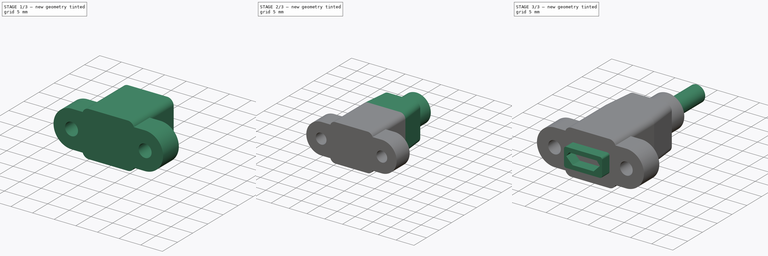
[diagram: build sequence overview — one tinted view per stage of 3, left to right]
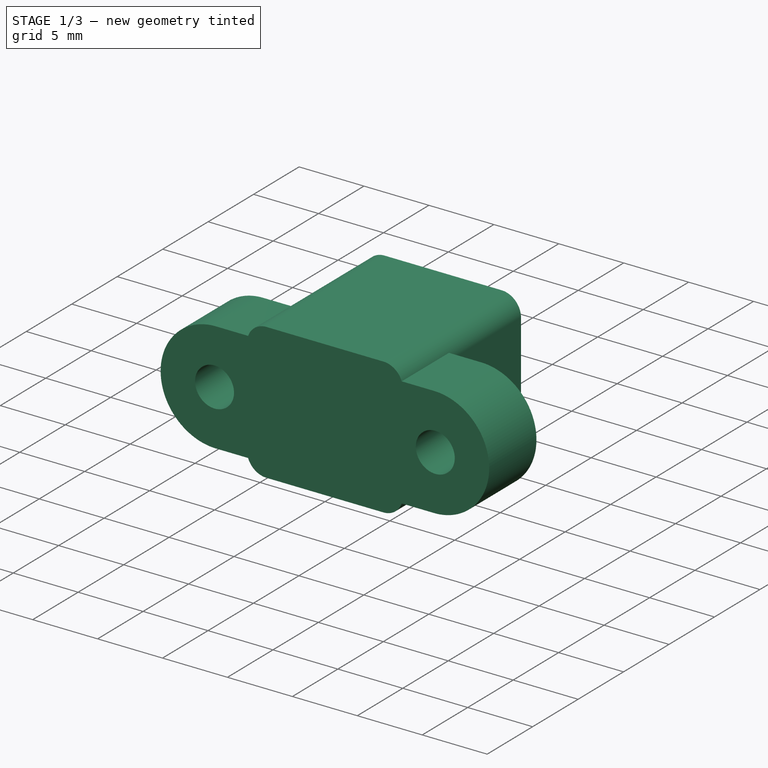
[diagram: stage 1 of 3 — iso view after this stage's code; geometry added in this stage tinted green]
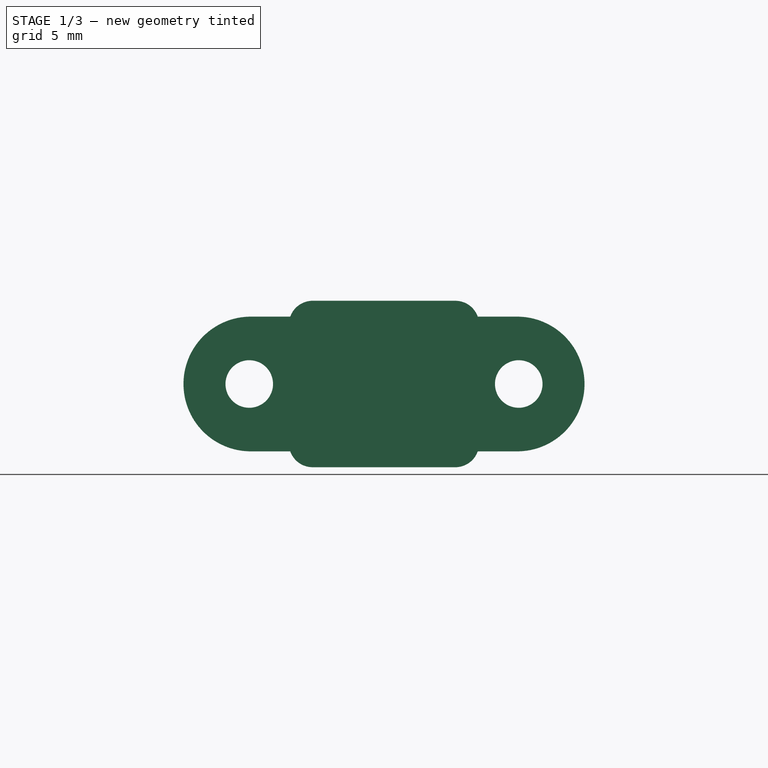
[diagram: stage 1 of 3 — front view after this stage's code; geometry added in this stage tinted green]
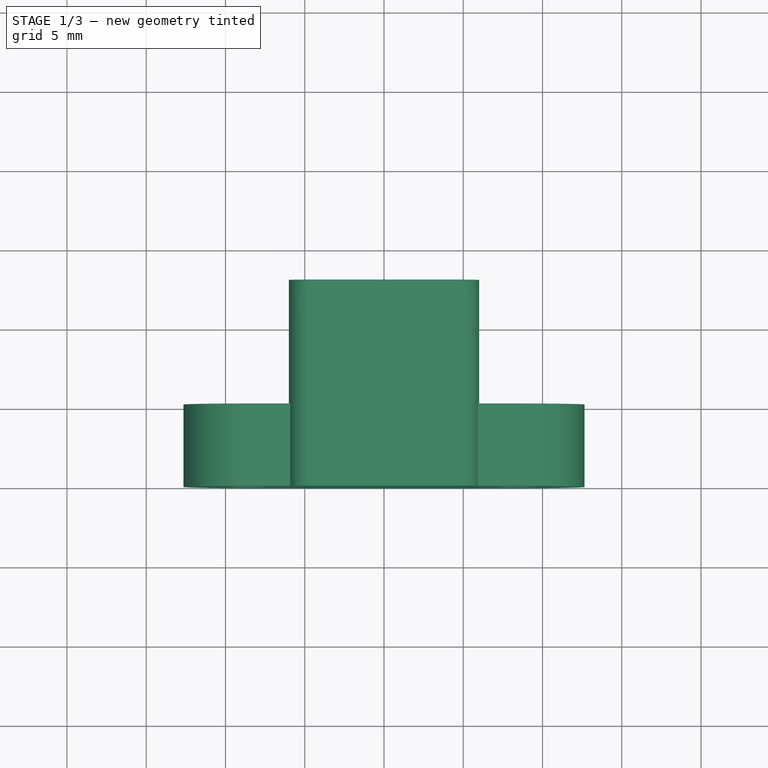
[diagram: stage 1 of 3 — top view after this stage's code; geometry added in this stage tinted green]
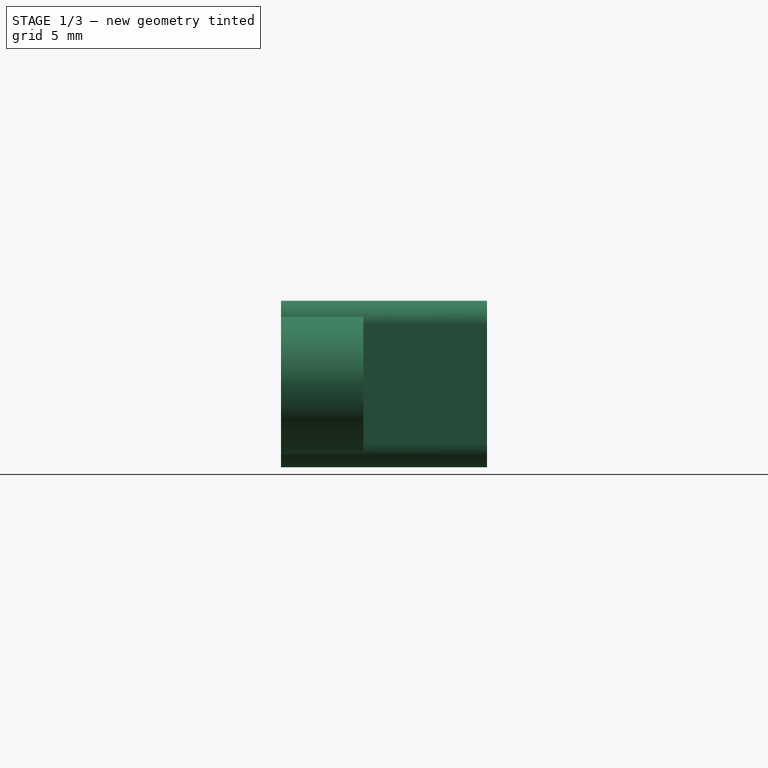
[diagram: stage 1 of 3 — right view after this stage's code; geometry added in this stage tinted green]
FCSTD DOCUMENT  (FreeCAD 0.19R24276 (Git))
Label: Std_USB_B_F
License: All rights reserved
LicenseURL: http://en.wikipedia.org/wiki/All_rights_reserved
objects: Sketcher::SketchObject×9, PartDesign::Pad×5, PartDesign::Plane×4, PartDesign::Pocket×2, PartDesign::AdditiveLoft×1, PartDesign::Body×1, App::Part×1
note: 30 computed .brp shape members not serialized (recipe doc carries the construction recipe); baked Part::Feature solids carry a one-line shape summary decoded from their .brp

FEATURE [Sketcher::SketchObject] Sketch
  FullyConstrained = true
  MapMode = 5
  Placement = pos=(0,0,0) rot=(1,0,0;1.5708rad)
  Support = -> [XZ_Plane001]
  sketch-geometry (26):
    g0: LineSegment StartX=-4.5 StartY=5.25 StartZ=0 EndX=4.5 EndY=5.25 EndZ=0
    g1: LineSegment StartX=5.91421 StartY=4.25 StartZ=0 EndX=8.4 EndY=4.25 EndZ=0
    g2: ArcOfCircle CenterX=8.4 CenterY=0 CenterZ=0 NormalX=0 NormalY=0 NormalZ=1 AngleXU=0 Radius=4.25 StartAngle=4.71239 EndAngle=7.85398
    g3: ArcOfCircle CenterX=4.5 CenterY=3.75 CenterZ=0 NormalX=0 NormalY=0 NormalZ=1 AngleXU=0 Radius=1.5 StartAngle=0.339837 EndAngle=1.5708
    g4: LineSegment StartX=0 StartY=0 StartZ=0 EndX=0 EndY=5.25 EndZ=0
    g5: LineSegment StartX=0 StartY=0 StartZ=0 EndX=0 EndY=-5.25 EndZ=0
    g6: LineSegment StartX=8.4 StartY=-4.25 StartZ=0 EndX=5.91421 EndY=-4.25 EndZ=0
    g7: LineSegment StartX=-4.5 StartY=-5.25 StartZ=0 EndX=4.5 EndY=-5.25 EndZ=0
    g8: LineSegment StartX=8.4 StartY=4.25 StartZ=0 EndX=8.4 EndY=-4.25 EndZ=0
    g9: ArcOfCircle CenterX=4.5 CenterY=-3.75 CenterZ=0 NormalX=0 NormalY=0 NormalZ=1 AngleXU=0 Radius=1.5 StartAngle=4.71239 EndAngle=5.94335
    g10: LineSegment StartX=-5.91421 StartY=4.25 StartZ=0 EndX=-8.4 EndY=4.25 EndZ=0
    g11: LineSegment StartX=-5.91421 StartY=-4.25 StartZ=0 EndX=-8.4 EndY=-4.25 EndZ=0
    g12: ArcOfCircle CenterX=-8.4 CenterY=0 CenterZ=0 NormalX=0 NormalY=0 NormalZ=1 AngleXU=0 Radius=4.25 StartAngle=1.5708 EndAngle=4.71239
    g13: LineSegment StartX=-8.4 StartY=4.25 StartZ=0 EndX=-8.4 EndY=-4.25 EndZ=0
    g14: ArcOfCircle CenterX=-4.5 CenterY=3.75 CenterZ=0 NormalX=0 NormalY=0 NormalZ=1 AngleXU=0 Radius=1.5 StartAngle=1.5708 EndAngle=2.80176
    g15: ArcOfCircle CenterX=-4.5 CenterY=-3.75 CenterZ=0 NormalX=0 NormalY=0 NormalZ=1 AngleXU=0 Radius=1.5 StartAngle=3.48143 EndAngle=4.71239
    g16: GeomPoint X=12.65 Y=0 Z=0
    g17: GeomPoint X=-12.65 Y=0 Z=0
    g18: ArcOfCircle CenterX=-4.5 CenterY=3.75 CenterZ=0 NormalX=0 NormalY=0 NormalZ=1 AngleXU=0 Radius=1.5 StartAngle=2.80176 EndAngle=3.14159
    g19: ArcOfCircle CenterX=-4.5 CenterY=-3.75 CenterZ=0 NormalX=0 NormalY=0 NormalZ=1 AngleXU=0 Radius=1.5 StartAngle=3.14159 EndAngle=3.48143
    g20: LineSegment StartX=-6 StartY=3.75 StartZ=0 EndX=-4.5 EndY=3.75 EndZ=0
    g21: LineSegment StartX=-4.5 StartY=-3.75 StartZ=0 EndX=-6 EndY=-3.75 EndZ=0
    g22: ArcOfCircle CenterX=4.5 CenterY=3.75 CenterZ=0 NormalX=0 NormalY=0 NormalZ=1 AngleXU=0 Radius=1.5 StartAngle=0 EndAngle=0.339837
    g23: ArcOfCircle CenterX=4.5 CenterY=-3.75 CenterZ=0 NormalX=0 NormalY=0 NormalZ=1 AngleXU=0 Radius=1.5 StartAngle=5.94335 EndAngle=6.28319
    g24: LineSegment StartX=4.5 StartY=3.75 StartZ=0 EndX=6 EndY=3.75 EndZ=0
    g25: LineSegment StartX=4.5 StartY=-3.75 StartZ=0 EndX=6 EndY=-3.75 EndZ=0
  constraints (70):
    c: Horizontal(g0)
    c: Horizontal(g1)
    c: PointOnObject(g2,g-1)
    c: Coincident(g2,g1)
    c: Tangent(g0,g3) = 1.5708
    c: Coincident(g4,g-1)
    c: PointOnObject(g4,g-2)
    c: Coincident(g5,g-1)
    c: Vertical(g5)
    c: Coincident(g6,g2)
    c: Horizontal(g7)
    c: Coincident(g8,g1)
    c: Coincident(g8,g2)
    c: Vertical(g8)
    c: PointOnObject(g2,g8)
    c: Equal(g4,g5)
    c: Equal(g6,g1)
    c: Horizontal(g6)
    c: Tangent(g7,g9) = -1.5708
    c: Horizontal(g11)
    c: Horizontal(g10)
    c: PointOnObject(g12,g-1)
    c: Coincident(g12,g10)
    c: Coincident(g12,g11)
    c: Coincident(g13,g10)
    c: Coincident(g13,g11)
    c: Vertical(g13)
    c: PointOnObject(g12,g13)
    c: Tangent(g0,g14) = 1.5708
    c: Tangent(g7,g15) = -1.5708
    c: Symmetric(g0,g0,g4)
    c: Symmetric(g7,g7,g5)
    c: DistanceY(g7,g0) = 10.5
    c: Radius(g3) = 1.5
    c: DistanceY(g2,g1) = 8.5
    c: PointOnObject(g16,g-1)
    c: PointOnObject(g17,g-1)
    c: PointOnObject(g17,g12)
    c: PointOnObject(g16,g2)
    c: Equal(g10,g1)
    c: DistanceX(g17,g16) = 25.3
    c: Equal(g9,g15)
    c: Equal(g14,g3)
    c: Equal(g9,g3)
    c: Coincident(g14,g10)
    c: Coincident(g15,g11)
    c: Coincident(g9,g6)
    c: Coincident(g3,g1)
    c: Equal(g12,g2)
    c: Coincident(g18,g14)
    c: Coincident(g18,g10)
    c: Coincident(g19,g15)
    c: Coincident(g19,g11)
    c: Coincident(g20,g18)
    c: Coincident(g20,g14)
    c: Horizontal(g20)
    c: Coincident(g21,g15)
    c: Coincident(g21,g19)
    c: Horizontal(g21)
    c: Coincident(g22,g3)
    c: Coincident(g22,g1)
    c: Coincident(g23,g9)
    c: Coincident(g23,g6)
    c: Coincident(g24,g3)
    c: Coincident(g24,g22)
    c: Horizontal(g24)
    c: Coincident(g25,g9)
    c: Coincident(g25,g23)
    c: Horizontal(g25)
    c: DistanceX(g18,g22) = 12
FEATURE [PartDesign::Pad] Pad
  Direction = (1,1,1)
  Length = 5.2
  Length2 = 100
  Placement = pos=(0,0,0) rot=(1,0,0;1.5708rad)
  Profile = -> Sketch
  Reversed = true
  Type = 0
FEATURE [PartDesign::Plane] DatumPlane  label="DatumZ1"
  AttachmentOffset = pos=(0,0,-5.2) rot=(0,0,1;0rad)
  Length = 60
  MapMode = 5
  Placement = pos=(0,5.2,1.2e-15) rot=(1,0,0;1.5708rad)
  ResizeMode = 0
  Support = -> [XZ_Plane001]
  Width = 60
FEATURE [PartDesign::Plane] DatumPlane001  label="DatumZ2"
  AttachmentOffset = pos=(0,0,-13) rot=(0,0,1;0rad)
  Length = 60
  MapMode = 5
  Placement = pos=(0,13,2.9e-15) rot=(1,0,0;1.5708rad)
  ResizeMode = 0
  Support = -> [XZ_Plane001]
  Width = 60
FEATURE [PartDesign::Plane] DatumPlane002  label="DatumZ3"
  AttachmentOffset = pos=(0,0,-20) rot=(0,0,1;0rad)
  Length = 60
  MapMode = 5
  Placement = pos=(0,20,4.4e-15) rot=(1,0,0;1.5708rad)
  ResizeMode = 0
  Support = -> [XZ_Plane001]
  Width = 60
FEATURE [PartDesign::Plane] DatumPlane003  label="DatumZ4"
  AttachmentOffset = pos=(0,0,-26) rot=(0,0,1;0rad)
  Length = 60
  MapMode = 5
  Placement = pos=(0,26,5.8e-15) rot=(1,0,0;1.5708rad)
  ResizeMode = 0
  Support = -> [XZ_Plane001]
  Width = 60
FEATURE [Sketcher::SketchObject] Sketch001
  FullyConstrained = true
  MapMode = 5
  Placement = pos=(0,5.2,1.2e-15) rot=(1,0,0;1.5708rad)
  Support = -> [DatumPlane]
  sketch-geometry (10):
    g0: LineSegment StartX=-4.5 StartY=5.25 StartZ=0 EndX=4.5 EndY=5.25 EndZ=0
    g1: LineSegment StartX=6 StartY=3.75 StartZ=0 EndX=6 EndY=-3.75 EndZ=0
    g2: LineSegment StartX=4.5 StartY=-5.25 StartZ=0 EndX=-4.5 EndY=-5.25 EndZ=0
    g3: LineSegment StartX=-6 StartY=-3.75 StartZ=0 EndX=-6 EndY=3.75 EndZ=0
    g4: LineSegment StartX=0 StartY=0 StartZ=0 EndX=0 EndY=5.25 EndZ=0
    g5: LineSegment StartX=0 StartY=0 StartZ=0 EndX=6 EndY=0 EndZ=0
    g6: ArcOfCircle CenterX=-4.5 CenterY=3.75 CenterZ=0 NormalX=0 NormalY=0 NormalZ=1 AngleXU=0 Radius=1.5 StartAngle=1.5708 EndAngle=3.14159
    g7: ArcOfCircle CenterX=4.5 CenterY=3.75 CenterZ=0 NormalX=0 NormalY=0 NormalZ=1 AngleXU=0 Radius=1.5 StartAngle=0 EndAngle=1.5708
    g8: ArcOfCircle CenterX=4.5 CenterY=-3.75 CenterZ=0 NormalX=0 NormalY=0 NormalZ=1 AngleXU=0 Radius=1.5 StartAngle=4.71239 EndAngle=6.28319
    g9: ArcOfCircle CenterX=-4.5 CenterY=-3.75 CenterZ=0 NormalX=0 NormalY=0 NormalZ=1 AngleXU=0 Radius=1.5 StartAngle=3.14159 EndAngle=4.71239
  constraints (24):
    c: Horizontal(g0)
    c: Horizontal(g2)
    c: Vertical(g1)
    c: Vertical(g3)
    c: Coincident(g4,g-1)
    c: PointOnObject(g4,g-2)
    c: Coincident(g5,g-1)
    c: Horizontal(g5)
    c: Tangent(g3,g6) = 1.5708
    c: Tangent(g0,g6) = 1.5708
    c: Tangent(g0,g7) = 1.5708
    c: Tangent(g1,g7) = 1.5708
    c: Tangent(g1,g8) = 1.5708
    c: Tangent(g2,g8) = 1.5708
    c: Tangent(g2,g9) = 1.5708
    c: Tangent(g3,g9) = 1.5708
    c: Equal(g6,g7)
    c: Equal(g7,g8)
    c: Equal(g8,g9)
    c: Radius(g7) = 1.5
    c: Symmetric(g0,g0,g4)
    c: Symmetric(g1,g1,g5)
    c: DistanceY(g2,g0) = 10.5
    c: DistanceX(g3,g1) = 12
FEATURE [PartDesign::Pad] Pad001
  BaseFeature = -> Pad
  Direction = (1,1,1)
  Length = 7.8
  Length2 = 100
  Placement = pos=(0,0,0) rot=(1,0,0;1.5708rad)
  Profile = -> Sketch001
  Reversed = true
  Type = 0
FEATURE [Sketcher::SketchObject] Sketch002
  FullyConstrained = true
  MapMode = 5
  Placement = pos=(0,0,0) rot=(1,0,0;1.5708rad)
  Support = -> [XZ_Plane001]
  sketch-geometry (2):
    g0: Circle CenterX=8.5 CenterY=0 CenterZ=0 NormalX=0 NormalY=0 NormalZ=1 AngleXU=0 Radius=1.5
    g1: Circle CenterX=-8.5 CenterY=0 CenterZ=0 NormalX=0 NormalY=0 NormalZ=1 AngleXU=0 Radius=1.5
  constraints (5):
    c: PointOnObject(g1,g-1)
    c: Symmetric(g1,g0,g-1)
    c: Diameter(g0) = 3
    c: Equal(g0,g1)
    c: DistanceX(g1,g0) = 17
FEATURE [PartDesign::Pocket] Pocket
  BaseFeature = -> Pad001
  Length = 5
  Length2 = 100
  Placement = pos=(0,0,0) rot=(1,0,0;1.5708rad)
  Profile = -> Sketch002
  Type = 1
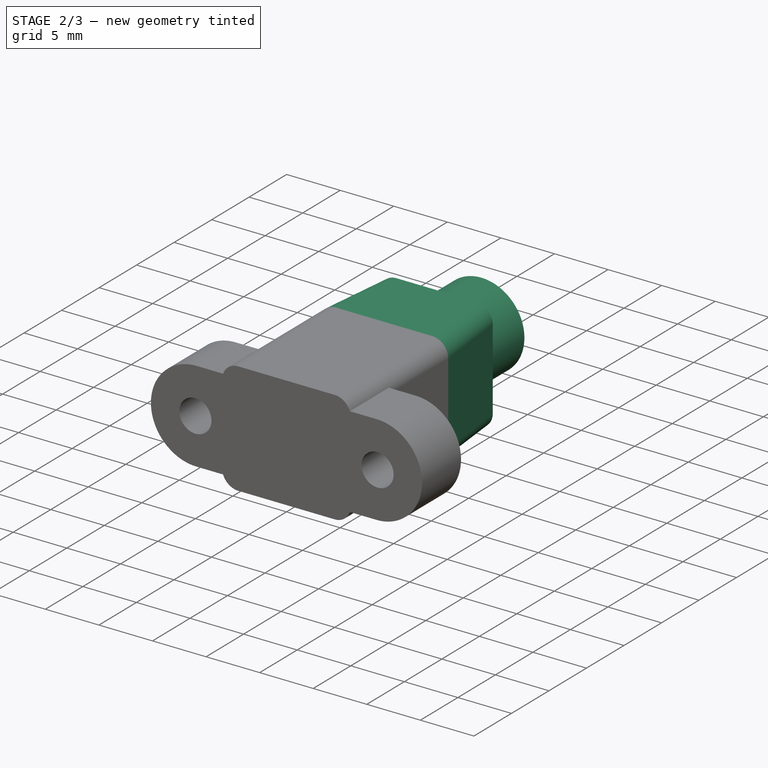
[diagram: stage 2 of 3 — iso view after this stage's code; geometry added in this stage tinted green]
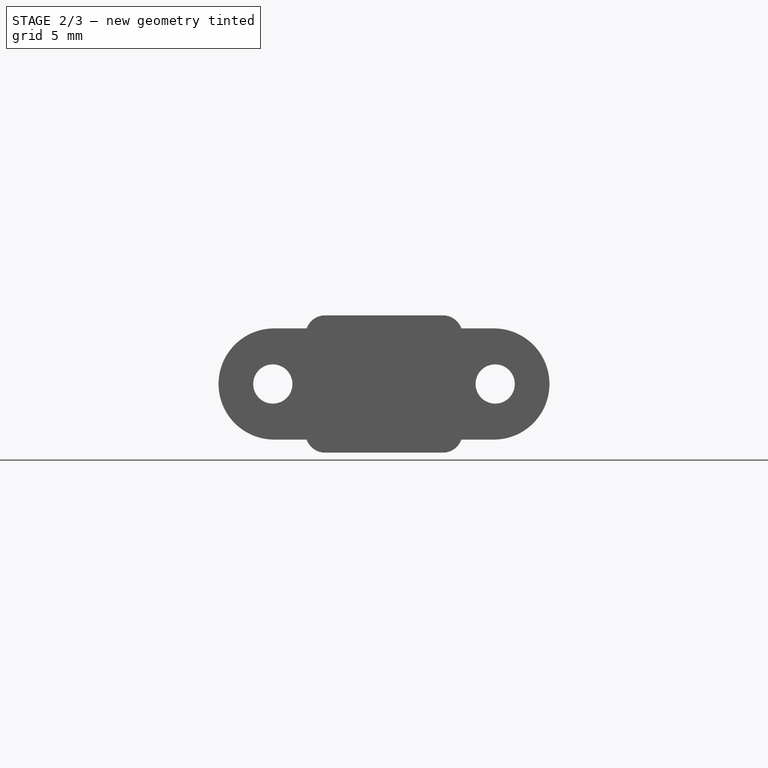
[diagram: stage 2 of 3 — front view after this stage's code; geometry added in this stage tinted green]
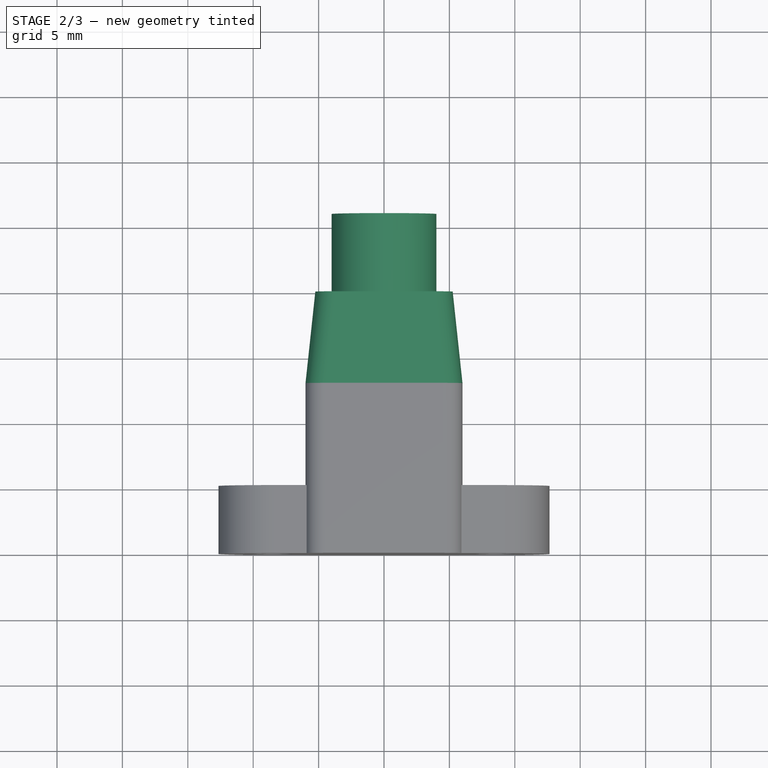
[diagram: stage 2 of 3 — top view after this stage's code; geometry added in this stage tinted green]
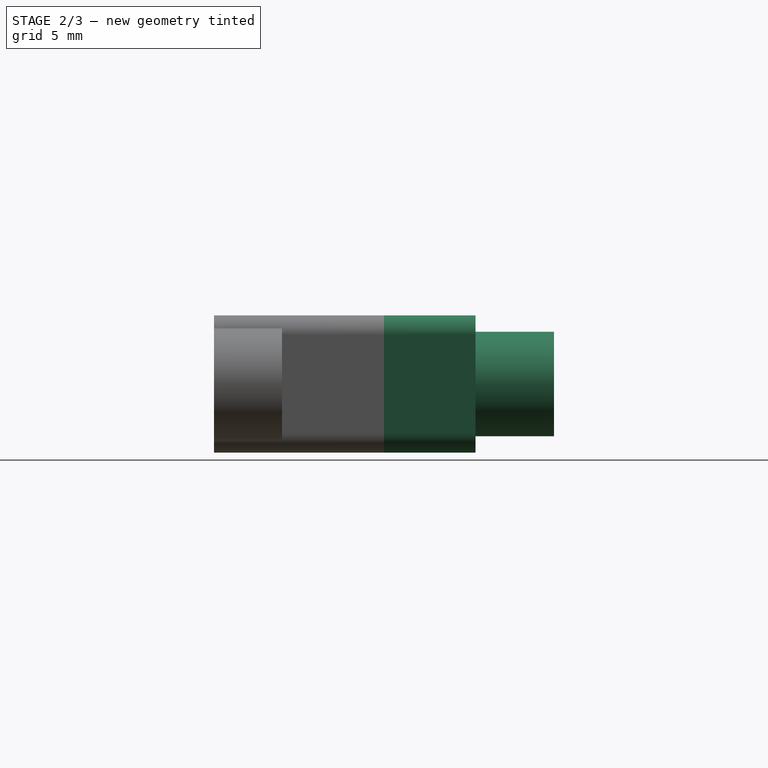
[diagram: stage 2 of 3 — right view after this stage's code; geometry added in this stage tinted green]
FEATURE [Sketcher::SketchObject] Sketch003
  FullyConstrained = true
  MapMode = 5
  Placement = pos=(0,13,2.9e-15) rot=(1,0,0;1.5708rad)
  Support = -> [DatumPlane001]
  sketch-geometry (10):
    g0: LineSegment StartX=-4.5 StartY=5.25 StartZ=0 EndX=4.5 EndY=5.25 EndZ=0
    g1: LineSegment StartX=6 StartY=3.75 StartZ=0 EndX=6 EndY=-3.75 EndZ=0
    g2: LineSegment StartX=4.5 StartY=-5.25 StartZ=0 EndX=-4.5 EndY=-5.25 EndZ=0
    g3: LineSegment StartX=-6 StartY=-3.75 StartZ=0 EndX=-6 EndY=3.75 EndZ=0
    g4: ArcOfCircle CenterX=-4.5 CenterY=3.75 CenterZ=0 NormalX=0 NormalY=0 NormalZ=1 AngleXU=0 Radius=1.5 StartAngle=1.5708 EndAngle=3.14159
    g5: ArcOfCircle CenterX=4.5 CenterY=3.75 CenterZ=0 NormalX=0 NormalY=0 NormalZ=1 AngleXU=0 Radius=1.5 StartAngle=0 EndAngle=1.5708
    g6: ArcOfCircle CenterX=4.5 CenterY=-3.75 CenterZ=0 NormalX=0 NormalY=0 NormalZ=1 AngleXU=0 Radius=1.5 StartAngle=4.71239 EndAngle=6.28319
    g7: ArcOfCircle CenterX=-4.5 CenterY=-3.75 CenterZ=0 NormalX=0 NormalY=0 NormalZ=1 AngleXU=0 Radius=1.5 StartAngle=3.14159 EndAngle=4.71239
    g8: LineSegment StartX=0 StartY=0 StartZ=0 EndX=0 EndY=5.25 EndZ=0
    g9: LineSegment StartX=0 StartY=0 StartZ=0 EndX=6 EndY=0 EndZ=0
  constraints (24):
    c: Horizontal(g0)
    c: Horizontal(g2)
    c: Vertical(g1)
    c: Vertical(g3)
    c: Tangent(g3,g4) = 1.5708
    c: Tangent(g0,g4) = 1.5708
    c: Tangent(g0,g5) = 1.5708
    c: Tangent(g1,g5) = 1.5708
    c: Tangent(g2,g6) = 1.5708
    c: Tangent(g1,g6) = 1.5708
    c: Tangent(g2,g7) = 1.5708
    c: Tangent(g3,g7) = 1.5708
    c: Equal(g4,g5)
    c: Equal(g5,g6)
    c: Equal(g6,g7)
    c: Coincident(g8,g-1)
    c: PointOnObject(g8,g-2)
    c: Coincident(g9,g-1)
    c: PointOnObject(g9,g-1)
    c: Symmetric(g0,g0,g8)
    c: Symmetric(g1,g1,g9)
    c: Radius(g5) = 1.5
    c: DistanceX(g3,g1) = 12
    c: DistanceY(g2,g0) = 10.5
FEATURE [Sketcher::SketchObject] Sketch004
  FullyConstrained = true
  MapMode = 5
  Placement = pos=(0,20,4.4e-15) rot=(1,0,0;1.5708rad)
  Support = -> [DatumPlane002]
  sketch-geometry (10):
    g0: LineSegment StartX=-3.75 StartY=5.25 StartZ=0 EndX=3.75 EndY=5.25 EndZ=0
    g1: LineSegment StartX=5.25 StartY=3.75 StartZ=0 EndX=5.25 EndY=-3.75 EndZ=0
    g2: LineSegment StartX=3.75 StartY=-5.25 StartZ=0 EndX=-3.75 EndY=-5.25 EndZ=0
    g3: LineSegment StartX=-5.25 StartY=-3.75 StartZ=0 EndX=-5.25 EndY=3.75 EndZ=0
    g4: ArcOfCircle CenterX=-3.75 CenterY=3.75 CenterZ=0 NormalX=0 NormalY=0 NormalZ=1 AngleXU=0 Radius=1.5 StartAngle=1.5708 EndAngle=3.14159
    g5: ArcOfCircle CenterX=3.75 CenterY=3.75 CenterZ=0 NormalX=0 NormalY=0 NormalZ=1 AngleXU=0 Radius=1.5 StartAngle=0 EndAngle=1.5708
    g6: ArcOfCircle CenterX=3.75 CenterY=-3.75 CenterZ=0 NormalX=0 NormalY=0 NormalZ=1 AngleXU=0 Radius=1.5 StartAngle=4.71239 EndAngle=6.28319
    g7: ArcOfCircle CenterX=-3.75 CenterY=-3.75 CenterZ=0 NormalX=0 NormalY=0 NormalZ=1 AngleXU=0 Radius=1.5 StartAngle=3.14159 EndAngle=4.71239
    g8: LineSegment StartX=0 StartY=0 StartZ=0 EndX=0 EndY=5.25 EndZ=0
    g9: LineSegment StartX=0 StartY=0 StartZ=0 EndX=5.25 EndY=0 EndZ=0
  constraints (24):
    c: Horizontal(g0)
    c: Horizontal(g2)
    c: Vertical(g1)
    c: Vertical(g3)
    c: Tangent(g3,g4) = 1.5708
    c: Tangent(g0,g4) = 1.5708
    c: Tangent(g0,g5) = 1.5708
    c: Tangent(g1,g5) = 1.5708
    c: Tangent(g1,g6) = 1.5708
    c: Tangent(g2,g6) = 1.5708
    c: Tangent(g2,g7) = 1.5708
    c: Tangent(g3,g7) = 1.5708
    c: Equal(g5,g4)
    c: Equal(g7,g6)
    c: Equal(g6,g5)
    c: Radius(g5) = 1.5
    c: Coincident(g8,g-1)
    c: PointOnObject(g8,g-2)
    c: Coincident(g9,g-1)
    c: Horizontal(g9)
    c: Symmetric(g0,g0,g8)
    c: Symmetric(g1,g1,g9)
    c: DistanceY(g2,g0) = 10.5
    c: DistanceX(g3,g1) = 10.5
FEATURE [PartDesign::AdditiveLoft] AdditiveLoft
  BaseFeature = -> Pocket
  Closed = false
  Placement = pos=(0,0,0) rot=(1,0,0;1.5708rad)
  Profile = -> Sketch003
  Ruled = false
  Sections = -> [Sketch004]
FEATURE [Sketcher::SketchObject] Sketch005
  FullyConstrained = true
  MapMode = 5
  Placement = pos=(0,20,4.4e-15) rot=(1,0,0;1.5708rad)
  Support = -> [DatumPlane002]
  sketch-geometry (1):
    g0: Circle CenterX=0 CenterY=0 CenterZ=0 NormalX=0 NormalY=0 NormalZ=1 AngleXU=0 Radius=4
  constraints (2):
    c: Coincident(g0,g-1)
    c: Diameter(g0) = 8
FEATURE [PartDesign::Pad] Pad002
  BaseFeature = -> AdditiveLoft
  Direction = (1,1,1)
  Length = 6
  Length2 = 100
  Placement = pos=(0,0,0) rot=(1,0,0;1.5708rad)
  Profile = -> Sketch005
  Reversed = true
  Type = 0
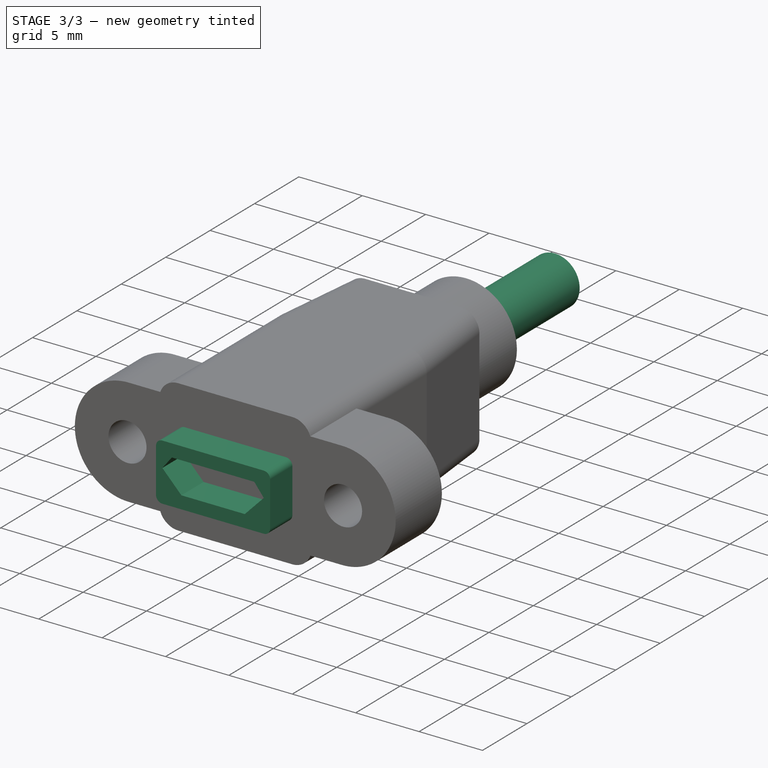
[diagram: stage 3 of 3 — iso view after this stage's code; geometry added in this stage tinted green]
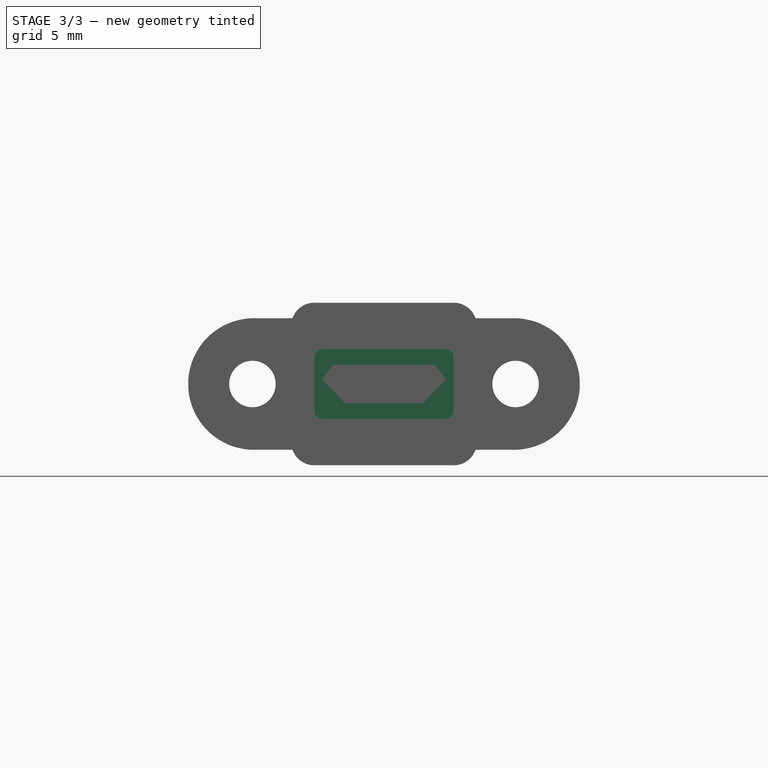
[diagram: stage 3 of 3 — front view after this stage's code; geometry added in this stage tinted green]
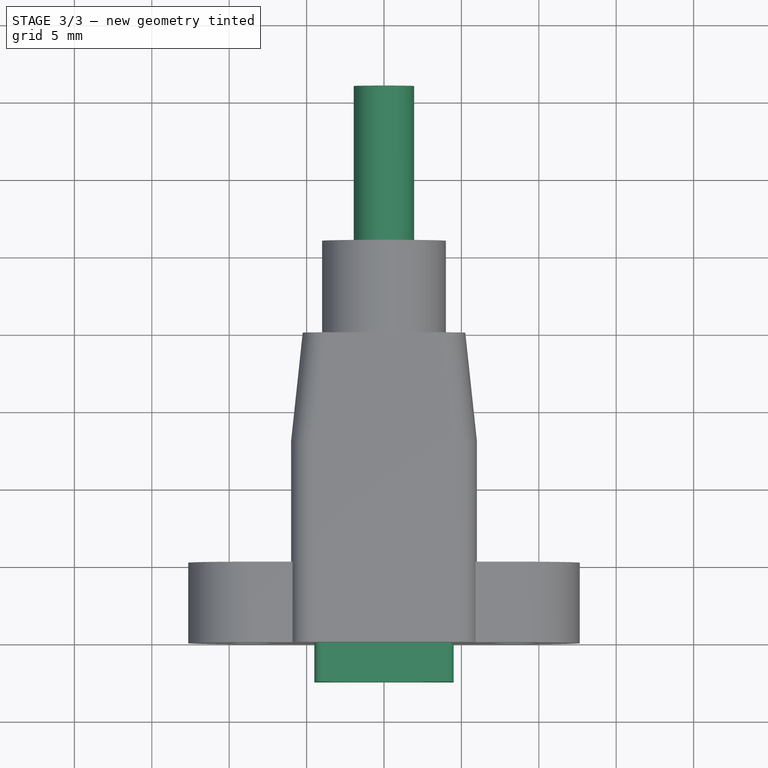
[diagram: stage 3 of 3 — top view after this stage's code; geometry added in this stage tinted green]
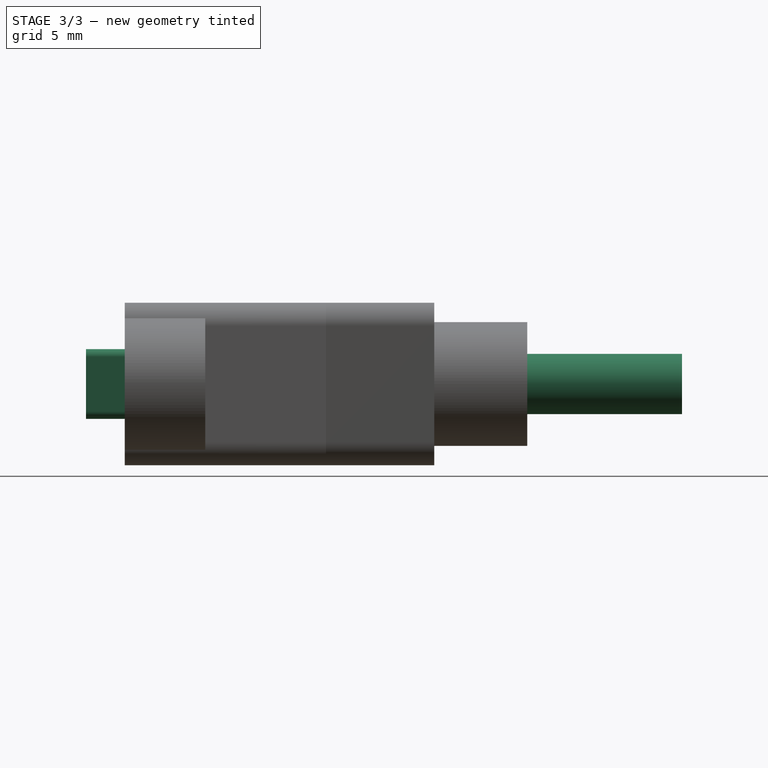
[diagram: stage 3 of 3 — right view after this stage's code; geometry added in this stage tinted green]
FEATURE [Sketcher::SketchObject] Sketch006
  FullyConstrained = true
  MapMode = 5
  Placement = pos=(0,26,5.8e-15) rot=(1,0,0;1.5708rad)
  Support = -> [DatumPlane003]
  sketch-geometry (1):
    g0: Circle CenterX=0 CenterY=0 CenterZ=0 NormalX=0 NormalY=0 NormalZ=1 AngleXU=0 Radius=1.95
  constraints (2):
    c: Coincident(g0,g-1)
    c: Diameter(g0) = 3.9
FEATURE [PartDesign::Pad] Pad003
  BaseFeature = -> Pad002
  Direction = (1,1,1)
  Length = 10
  Length2 = 100
  Placement = pos=(0,0,0) rot=(1,0,0;1.5708rad)
  Profile = -> Sketch006
  Reversed = true
  Type = 0
FEATURE [Sketcher::SketchObject] Sketch007
  FullyConstrained = true
  MapMode = 5
  Placement = pos=(0,0,0) rot=(1,0,0;1.5708rad)
  Support = -> [XZ_Plane001]
  sketch-geometry (10):
    g0: LineSegment StartX=-4 StartY=2.25 StartZ=0 EndX=4 EndY=2.25 EndZ=0
    g1: LineSegment StartX=4.5 StartY=1.75 StartZ=0 EndX=4.5 EndY=-1.75 EndZ=0
    g2: LineSegment StartX=4 StartY=-2.25 StartZ=0 EndX=-4 EndY=-2.25 EndZ=0
    g3: LineSegment StartX=-4.5 StartY=-1.75 StartZ=0 EndX=-4.5 EndY=1.75 EndZ=0
    g4: LineSegment StartX=0 StartY=0 StartZ=0 EndX=0 EndY=2.25 EndZ=0
    g5: LineSegment StartX=0 StartY=0 StartZ=0 EndX=4.5 EndY=0 EndZ=0
    g6: ArcOfCircle CenterX=-4 CenterY=1.75 CenterZ=0 NormalX=0 NormalY=0 NormalZ=1 AngleXU=0 Radius=0.5 StartAngle=1.5708 EndAngle=3.14159
    g7: ArcOfCircle CenterX=4 CenterY=1.75 CenterZ=0 NormalX=0 NormalY=0 NormalZ=1 AngleXU=0 Radius=0.5 StartAngle=0 EndAngle=1.5708
    g8: ArcOfCircle CenterX=4 CenterY=-1.75 CenterZ=0 NormalX=0 NormalY=0 NormalZ=1 AngleXU=0 Radius=0.5 StartAngle=4.71239 EndAngle=6.28319
    g9: ArcOfCircle CenterX=-4 CenterY=-1.75 CenterZ=0 NormalX=0 NormalY=0 NormalZ=1 AngleXU=0 Radius=0.5 StartAngle=3.14159 EndAngle=4.71239
  constraints (24):
    c: Horizontal(g0)
    c: Horizontal(g2)
    c: Vertical(g1)
    c: Vertical(g3)
    c: Coincident(g4,g-1)
    c: PointOnObject(g4,g-2)
    c: Coincident(g5,g-1)
    c: PointOnObject(g5,g-1)
    c: Tangent(g3,g6) = 1.5708
    c: Tangent(g0,g6) = 1.5708
    c: Tangent(g0,g7) = 1.5708
    c: Tangent(g1,g7) = 1.5708
    c: Tangent(g1,g8) = 1.5708
    c: Tangent(g2,g8) = 1.5708
    c: Tangent(g2,g9) = 1.5708
    c: Tangent(g3,g9) = 1.5708
    c: Equal(g8,g7)
    c: Equal(g9,g6)
    c: Equal(g6,g7)
    c: Symmetric(g0,g0,g4)
    c: Symmetric(g1,g1,g5)
    c: DistanceY(g2,g0) = 4.5
    c: DistanceX(g3,g1) = 9
    c: Radius(g7) = 0.5
FEATURE [PartDesign::Pad] Pad004
  BaseFeature = -> Pad003
  Direction = (1,1,1)
  Length = 2.5
  Length2 = 100
  Placement = pos=(0,0,0) rot=(1,0,0;1.5708rad)
  Profile = -> Sketch007
  Type = 0
FEATURE [Sketcher::SketchObject] Sketch008
  FullyConstrained = true
  MapMode = 5
  Placement = pos=(0,-2.5,-6e-16) rot=(1,0,0;1.5708rad)
  Support = -> [Pad004]
  sketch-geometry (9):
    g0: LineSegment StartX=-3.25 StartY=1.25 StartZ=0 EndX=3.25 EndY=1.25 EndZ=0
    g1: LineSegment StartX=-3.25 StartY=1.25 StartZ=0 EndX=-4 EndY=0.3 EndZ=0
    g2: LineSegment StartX=-4 StartY=0.3 StartZ=0 EndX=-2.5 EndY=-1.25 EndZ=0
    g3: LineSegment StartX=-2.5 StartY=-1.25 StartZ=0 EndX=2.5 EndY=-1.25 EndZ=0
    g4: LineSegment StartX=2.5 StartY=-1.25 StartZ=0 EndX=4 EndY=0.3 EndZ=0
    g5: LineSegment StartX=4 StartY=0.3 StartZ=0 EndX=3.25 EndY=1.25 EndZ=0
    g6: LineSegment StartX=-4 StartY=0.3 StartZ=0 EndX=4 EndY=0.3 EndZ=0
    g7: LineSegment StartX=0 StartY=0 StartZ=0 EndX=0 EndY=1.25 EndZ=0
    g8: LineSegment StartX=0 StartY=0 StartZ=0 EndX=0 EndY=-1.25 EndZ=0
  constraints (24):
    c: Horizontal(g0)
    c: Coincident(g1,g0)
    c: Coincident(g2,g1)
    c: Coincident(g3,g2)
    c: Horizontal(g3)
    c: Coincident(g4,g3)
    c: Coincident(g5,g4)
    c: Coincident(g5,g0)
    c: Coincident(g6,g1)
    c: Coincident(g6,g4)
    c: Horizontal(g6)
    c: Coincident(g7,g-1)
    c: PointOnObject(g7,g-2)
    c: Coincident(g8,g-1)
    c: PointOnObject(g8,g-2)
    c: Symmetric(g0,g0,g7)
    c: Symmetric(g2,g3,g8)
    c: Equal(g8,g7)
    c: DistanceX(g1,g4) = 8
    c: Equal(g1,g5)
    c: DistanceY(g3,g0) = 2.5
    c: DistanceX(g0,g0) = 6.5
    c: DistanceX(g2,g3) = 5
    c: DistanceY(g-1,g4) = 0.3
FEATURE [PartDesign::Pocket] Pocket001
  BaseFeature = -> Pad004
  Length = 2.5
  Length2 = 100
  Placement = pos=(0,0,0) rot=(1,0,0;1.5708rad)
  Profile = -> Sketch008
  Type = 0
FEATURE [PartDesign::Body] Body  label="USB_MainBody"
  Group = -> [Sketch,Pad,DatumPlane,DatumPlane001,DatumPlane002,DatumPlane003,Sketch001,Pad001,Sketch002,Pocket,Sketch003,Sketch004,AdditiveLoft,Sketch005,Pad002,Sketch006,Pad003,Sketch007,Pad004,Sketch008,Pocket001]
  Origin = -> Origin001
  Tip = -> Pocket001
FEATURE [App::Part] Part  label="Std_USB_B_Fem_Mount"
  Group = -> [Body]
  Origin = -> Origin
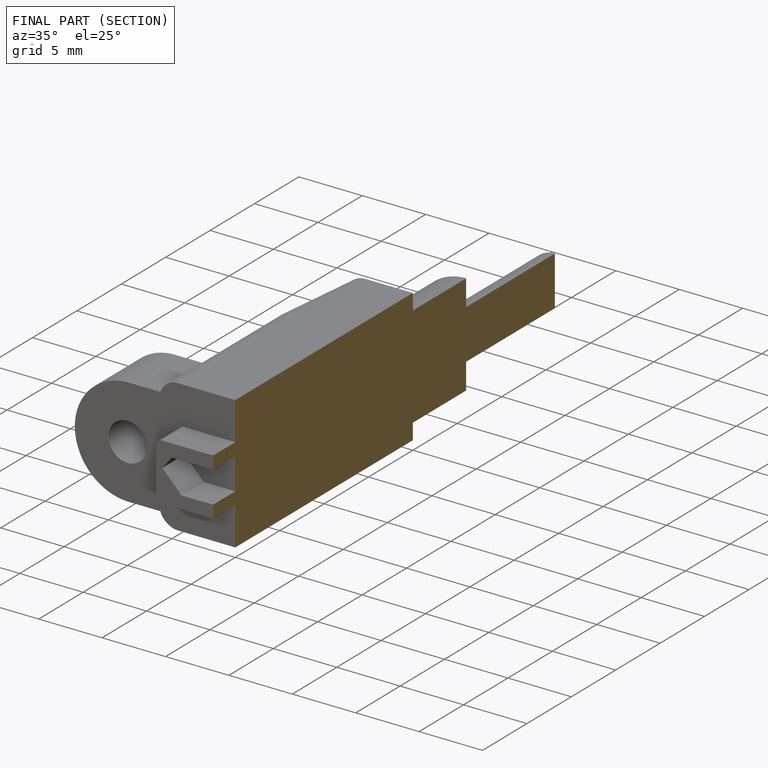
[diagram: finished part — half-section view (interior)]
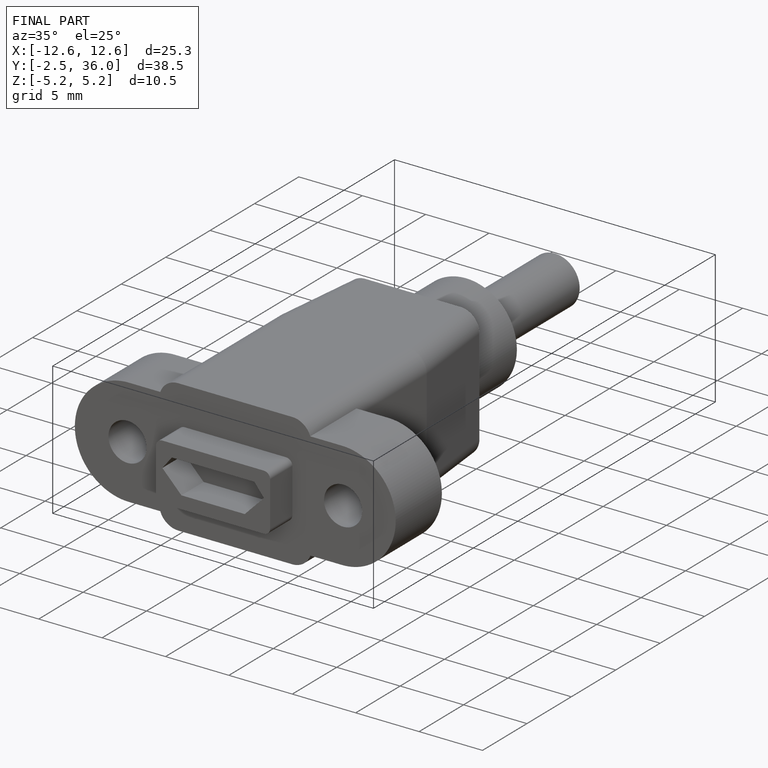
[diagram: finished part — iso view with bounding-box wireframe]
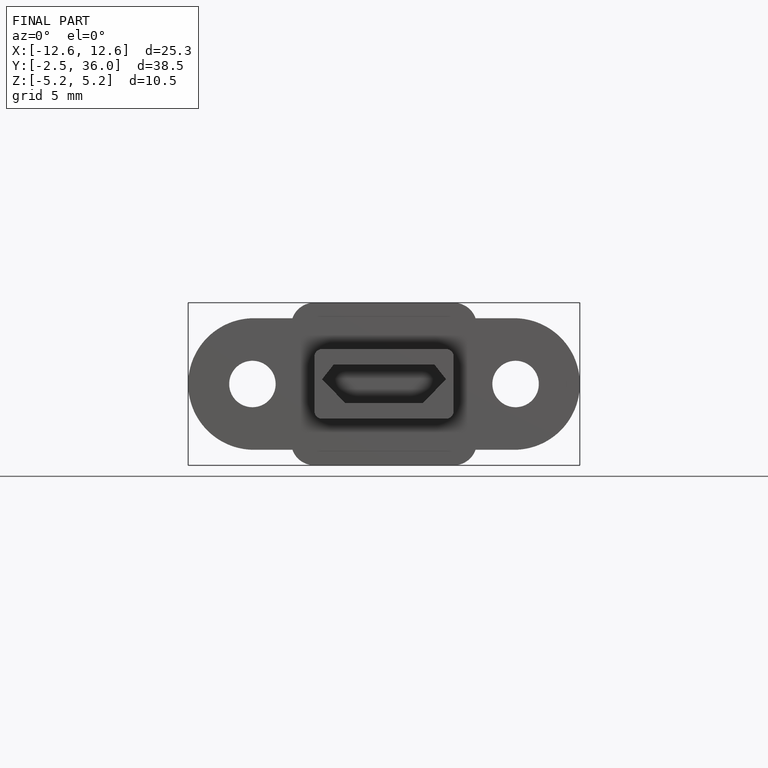
[diagram: finished part — front view with bounding-box wireframe]
